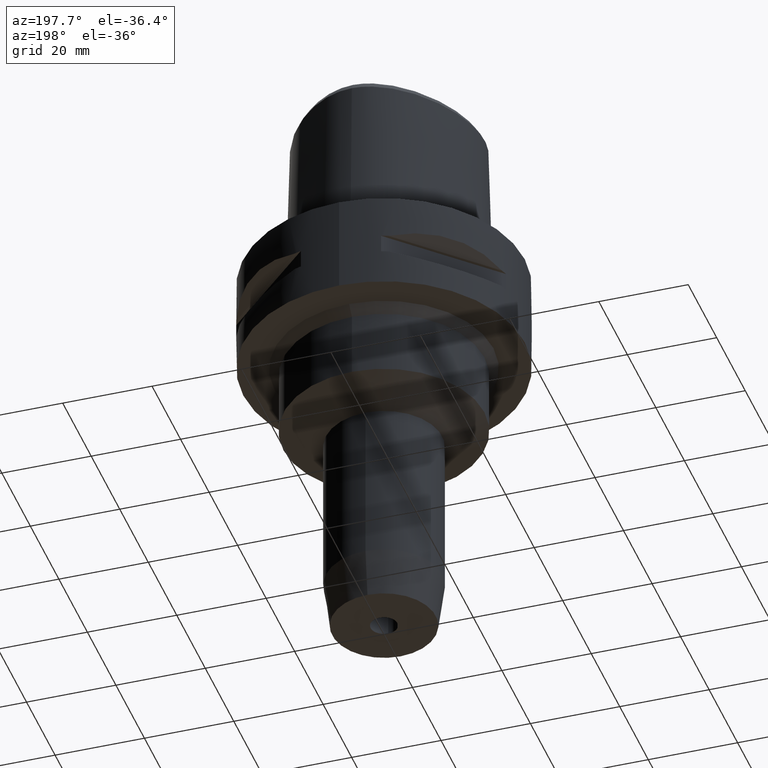
[diagram: clean part render]
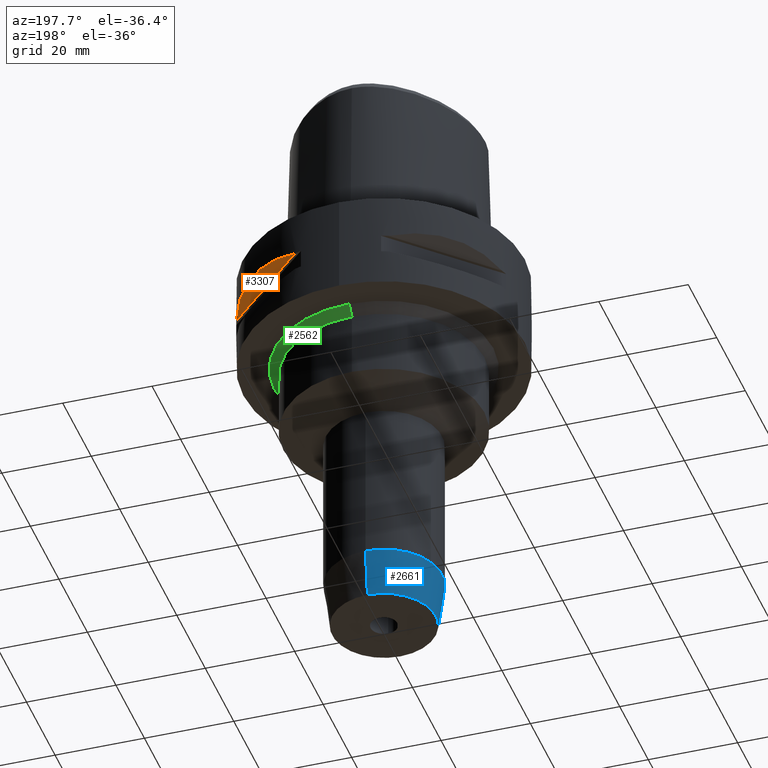
[diagram: same view with three faces highlighted in distinct colors, each labeled with its STEP entity id]
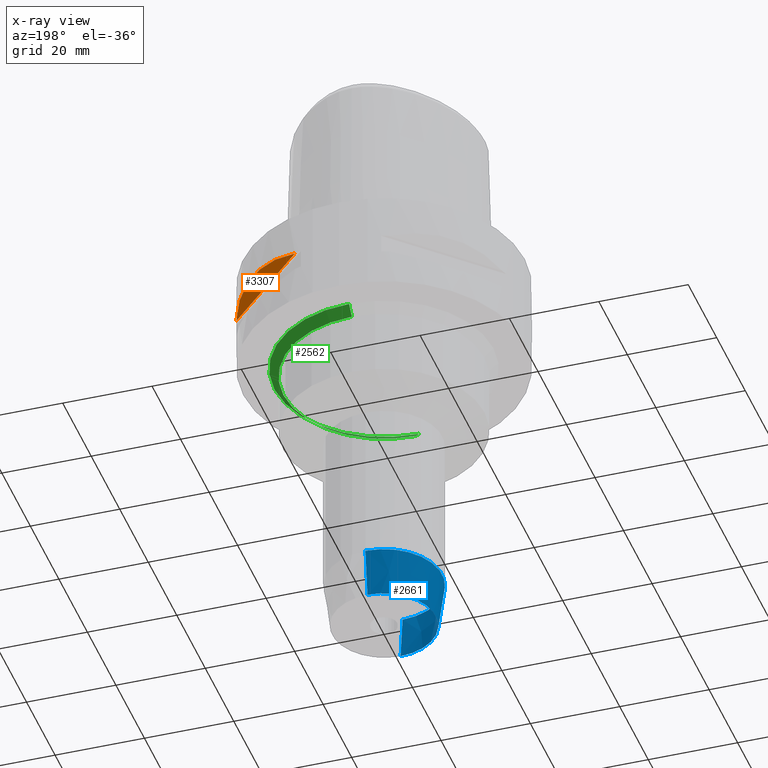
[diagram: x-ray of the same camera — body ghosted, the three highlighted faces saturated]
A machine part, auxiliary view with three faces highlighted in distinct colors.
The next image is the same camera in x-ray (body ghosted, the three faces saturated) — at least one of them is partly hidden behind the body in this view.
Their STEP definitions:

[orange] entity #3307 — the highlighted planar face has unit normal (-0.3536, -0.3536, 0.866).
#1337=CARTESIAN_POINT('',(2.971690375018E1,1.044775724750E1,-9.949999999999E0));
#1338=CARTESIAN_POINT('',(2.888151197365E1,1.282388988809E1,-9.320995176198E0));
#1339=CARTESIAN_POINT('',(2.674739463903E1,1.711282138769E1,-8.441295977074E0));
#1340=CARTESIAN_POINT('',(2.244574140438E1,2.244574140438E1,-8.020283076294E0));
#1341=CARTESIAN_POINT('',(1.711282138769E1,2.674739463903E1,-8.441295977074E0));
#1342=CARTESIAN_POINT('',(1.282388988809E1,2.888151197365E1,-9.320995176198E0));
#1343=CARTESIAN_POINT('',(1.044775724750E1,2.971690375018E1,-9.949999999999E0));
#1364=DIRECTION('',(-7.071067811865E-1,7.071067811865E-1,0.E0));
#1365=VECTOR('',#1364,2.725068831944E1);
#1366=CARTESIAN_POINT('',(2.971690375018E1,1.044775724750E1,-9.949999999999E0));
#1367=LINE('',#1366,#1365);
#1623=VERTEX_POINT('',#1337);
#1624=VERTEX_POINT('',#1343);
#3297=CARTESIAN_POINT('',(8.838834764832E0,3.712310601229E1,-7.583270440699E0));
#3298=DIRECTION('',(-3.535533905933E-1,-3.535533905933E-1,8.660254037844E-1));
#3299=DIRECTION('',(-6.123724356958E-1,-6.123724356958E-1,-5.E-1));
#3300=AXIS2_PLACEMENT_3D('',#3297,#3298,#3299);
#3301=PLANE('',#3300);
#3302=ORIENTED_EDGE('',*,*,#2500,.T.);
#3304=ORIENTED_EDGE('',*,*,#3303,.F.);
#3305=EDGE_LOOP('',(#3302,#3304));
#3306=FACE_OUTER_BOUND('',#3305,.F.);
#1344=B_SPLINE_CURVE_WITH_KNOTS('',3,(#1337,#1338,#1339,#1340,#1341,#1342,
#1343),.UNSPECIFIED.,.F.,.F.,(4,1,1,1,4),(0.E0,2.5E-1,5.E-1,7.5E-1,1.E0),
.UNSPECIFIED.);
#2500=EDGE_CURVE('',#1623,#1624,#1344,.T.);
#3303=EDGE_CURVE('',#1623,#1624,#1367,.T.);
#3307=ADVANCED_FACE('',(#3306),#3301,.F.);

[blue] entity #2661 — the highlighted conical surface has half-angle 7.5 deg.
#644=CARTESIAN_POINT('',(0.E0,0.E0,-7.933556122573E1));
#645=DIRECTION('',(0.E0,0.E0,1.E0));
#646=DIRECTION('',(0.E0,1.E0,0.E0));
#647=AXIS2_PLACEMENT_3D('',#644,#645,#646);
#652=DIRECTION('',(0.E0,1.305261922200E-1,-9.914448613738E-1));
#653=VECTOR('',#652,1.075646179606E1);
#654=CARTESIAN_POINT('',(0.E0,-1.3E1,-7.933556122573E1));
#655=LINE('',#654,#653);
#659=DIRECTION('',(0.E0,-1.305261922200E-1,-9.914448613738E-1));
#660=VECTOR('',#659,1.075646179606E1);
#661=CARTESIAN_POINT('',(0.E0,1.3E1,-7.933556122573E1));
#662=LINE('',#661,#660);
#682=CARTESIAN_POINT('',(0.E0,0.E0,-9.E1));
#683=DIRECTION('',(0.E0,0.E0,1.E0));
#684=DIRECTION('',(0.E0,1.E0,0.E0));
#685=AXIS2_PLACEMENT_3D('',#682,#683,#684);
#1652=CARTESIAN_POINT('',(0.E0,1.3E1,-7.933556122573E1));
#1653=VERTEX_POINT('',#1652);
#1654=CARTESIAN_POINT('',(0.E0,-1.3E1,-7.933556122573E1));
#1655=VERTEX_POINT('',#1654);
#1656=CARTESIAN_POINT('',(0.E0,1.1596E1,-9.E1));
#1657=VERTEX_POINT('',#1656);
#1658=CARTESIAN_POINT('',(0.E0,-1.1596E1,-9.E1));
#1659=VERTEX_POINT('',#1658);
#2647=CARTESIAN_POINT('',(0.E0,0.E0,-8.466778061287E1));
#2648=DIRECTION('',(0.E0,0.E0,1.E0));
#2649=DIRECTION('',(0.E0,1.E0,0.E0));
#2650=AXIS2_PLACEMENT_3D('',#2647,#2648,#2649);
#2651=CONICAL_SURFACE('',#2650,1.2298E1,7.5E0);
#2653=ORIENTED_EDGE('',*,*,#2652,.F.);
#2654=ORIENTED_EDGE('',*,*,#2642,.T.);
#2656=ORIENTED_EDGE('',*,*,#2655,.T.);
#2658=ORIENTED_EDGE('',*,*,#2657,.F.);
#2659=EDGE_LOOP('',(#2653,#2654,#2656,#2658));
#2660=FACE_OUTER_BOUND('',#2659,.F.);
#648=CIRCLE('',#647,1.3E1);
#686=CIRCLE('',#685,1.1596E1);
#2642=EDGE_CURVE('',#1653,#1655,#648,.T.);
#2652=EDGE_CURVE('',#1653,#1657,#662,.T.);
#2655=EDGE_CURVE('',#1655,#1659,#655,.T.);
#2657=EDGE_CURVE('',#1657,#1659,#686,.T.);
#2661=ADVANCED_FACE('',(#2660),#2651,.T.);

[green] entity #2562 — the highlighted conical surface has half-angle 45 deg.
#532=CARTESIAN_POINT('',(0.E0,0.E0,-2.2E1));
#533=DIRECTION('',(0.E0,0.E0,-1.E0));
#534=DIRECTION('',(0.E0,1.E0,0.E0));
#535=AXIS2_PLACEMENT_3D('',#532,#533,#534);
#540=DIRECTION('',(0.E0,7.071067811865E-1,-7.071067811865E-1));
#541=VECTOR('',#540,2.828427124746E0);
#542=CARTESIAN_POINT('',(0.E0,-2.45E1,-2.2E1));
#543=LINE('',#542,#541);
#555=DIRECTION('',(0.E0,-7.071067811865E-1,-7.071067811865E-1));
#556=VECTOR('',#555,2.828427124746E0);
#557=CARTESIAN_POINT('',(0.E0,2.45E1,-2.2E1));
#558=LINE('',#557,#556);
#562=CARTESIAN_POINT('',(0.E0,0.E0,-2.4E1));
#563=DIRECTION('',(0.E0,0.E0,-1.E0));
#564=DIRECTION('',(0.E0,1.E0,0.E0));
#565=AXIS2_PLACEMENT_3D('',#562,#563,#564);
#1636=CARTESIAN_POINT('',(0.E0,-2.45E1,-2.2E1));
#1637=CARTESIAN_POINT('',(0.E0,2.45E1,-2.2E1));
#1638=VERTEX_POINT('',#1636);
#1639=VERTEX_POINT('',#1637);
#1640=CARTESIAN_POINT('',(0.E0,2.25E1,-2.4E1));
#1641=VERTEX_POINT('',#1640);
#1642=CARTESIAN_POINT('',(0.E0,-2.25E1,-2.4E1));
#1643=VERTEX_POINT('',#1642);
#2550=CARTESIAN_POINT('',(0.E0,0.E0,-2.3E1));
#2551=DIRECTION('',(0.E0,0.E0,1.E0));
#2552=DIRECTION('',(0.E0,1.E0,0.E0));
#2553=AXIS2_PLACEMENT_3D('',#2550,#2551,#2552);
#2554=CONICAL_SURFACE('',#2553,2.35E1,4.5E1);
#2555=ORIENTED_EDGE('',*,*,#2540,.T.);
#2557=ORIENTED_EDGE('',*,*,#2556,.T.);
#2558=ORIENTED_EDGE('',*,*,#2543,.F.);
#2559=ORIENTED_EDGE('',*,*,#2530,.F.);
#2560=EDGE_LOOP('',(#2555,#2557,#2558,#2559));
#2561=FACE_OUTER_BOUND('',#2560,.F.);
#536=CIRCLE('',#535,2.45E1);
#566=CIRCLE('',#565,2.25E1);
#2530=EDGE_CURVE('',#1639,#1638,#536,.T.);
#2540=EDGE_CURVE('',#1639,#1641,#558,.T.);
#2543=EDGE_CURVE('',#1638,#1643,#543,.T.);
#2556=EDGE_CURVE('',#1641,#1643,#566,.T.);
#2562=ADVANCED_FACE('',(#2561),#2554,.T.);